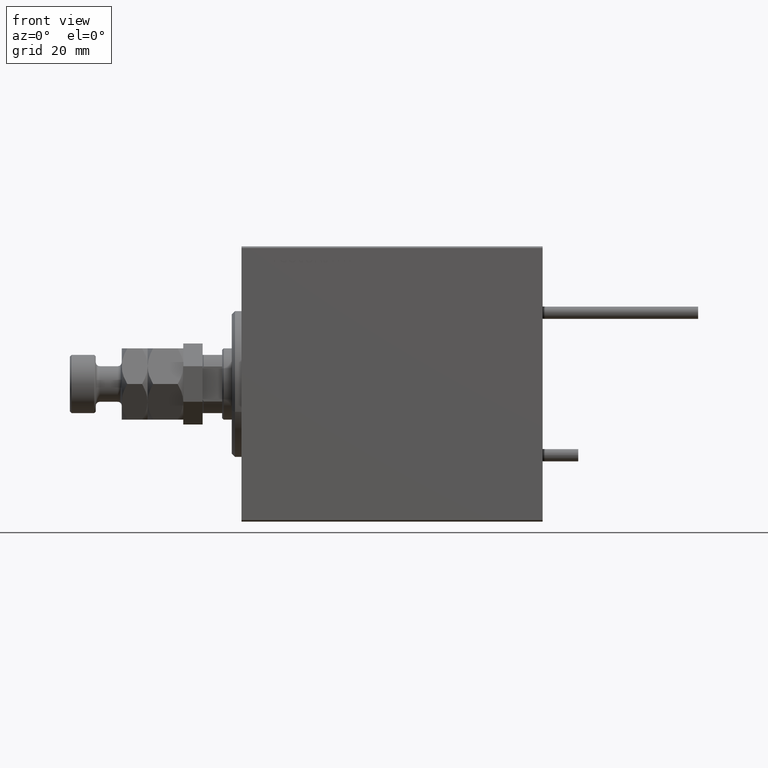
[diagram: clean part render]
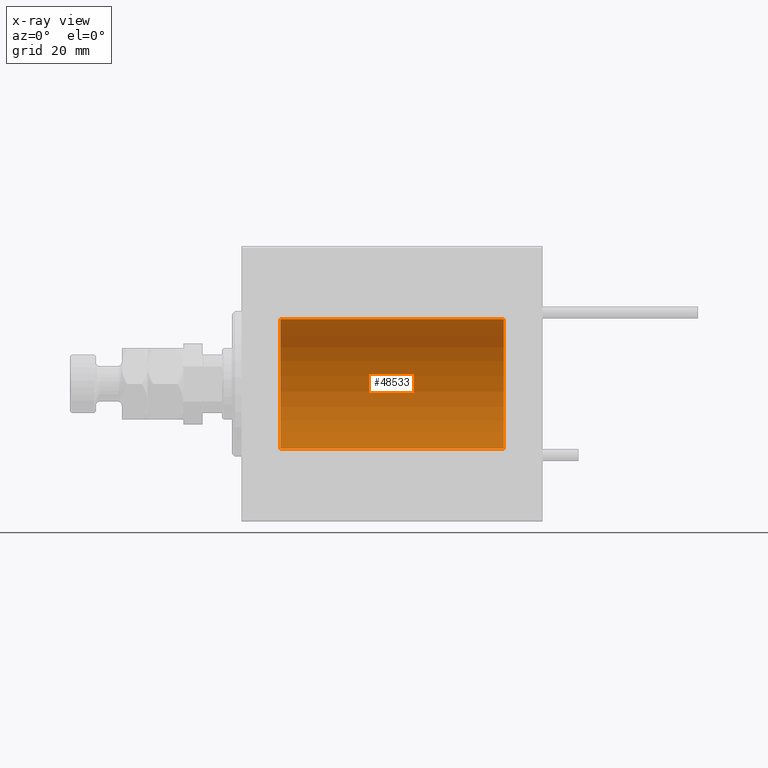
[diagram: x-ray — body ghosted, one internal face saturated and labeled with its STEP entity id]
A machine part, front view, then the same camera in x-ray: the body is ghosted and one INTERNAL B-rep face — a face not visible from any outside direction — is saturated and labeled: STEP entity #48533.
In plain terms, the highlighted cylindrical surface (partial cylindrical patch) has radius 20 mm, axis along (-1, -0, -0).
Its self-contained STEP definition (entity closure, byte-faithful):
#237 = ORIENTED_EDGE ( 'NONE', *, *, #27062, .F. ) ;
#2548 = CARTESIAN_POINT ( 'NONE',  ( 81.00000000000000000, 0.000000000000000000, 20.00000000000000000 ) ) ;
#4098 = CYLINDRICAL_SURFACE ( 'NONE', #14692, 20.00000000000000000 ) ;
#4639 = CARTESIAN_POINT ( 'NONE',  ( 81.00000000000000000, 0.000000000000000000, 20.00000000000000000 ) ) ;
#7573 = CARTESIAN_POINT ( 'NONE',  ( 11.99999999999999645, 0.000000000000000000, 20.00000000000000000 ) ) ;
#10331 = CIRCLE ( 'NONE', #47137, 20.00000000000000000 ) ;
#11092 = CARTESIAN_POINT ( 'NONE',  ( 81.00000000000000000, 0.000000000000000000, 0.000000000000000000 ) ) ;
#11710 = FACE_OUTER_BOUND ( 'NONE', #16971, .T. ) ;
#11732 = LINE ( 'NONE', #4639, #17516 ) ;
#13839 = DIRECTION ( 'NONE',  ( 0.000000000000000000, 0.000000000000000000, 1.000000000000000000 ) ) ;
#14692 = AXIS2_PLACEMENT_3D ( 'NONE', #43354, #43102, #15632 ) ;
#15243 = DIRECTION ( 'NONE',  ( -1.000000000000000000, -0.000000000000000000, -0.000000000000000000 ) ) ;
#15632 = DIRECTION ( 'NONE',  ( 0.000000000000000000, 0.000000000000000000, 1.000000000000000000 ) ) ;
#16971 = EDGE_LOOP ( 'NONE', ( #42592, #237, #42701, #22373 ) ) ;
#17241 = VERTEX_POINT ( 'NONE', #35540 ) ;
#17516 = VECTOR ( 'NONE', #32365, 1000.000000000000000 ) ;
#19988 = VERTEX_POINT ( 'NONE', #7573 ) ;
#22373 = ORIENTED_EDGE ( 'NONE', *, *, #40627, .T. ) ;
#26067 = EDGE_CURVE ( 'NONE', #39903, #19988, #11732, .T. ) ;
#26256 = CARTESIAN_POINT ( 'NONE',  ( 81.00000000000000000, 2.449293598294706513E-15, -20.00000000000000000 ) ) ;
#26518 = LINE ( 'NONE', #51071, #43017 ) ;
#27062 = EDGE_CURVE ( 'NONE', #39903, #51409, #47588, .T. ) ;
#32365 = DIRECTION ( 'NONE',  ( -1.000000000000000000, -0.000000000000000000, -0.000000000000000000 ) ) ;
#35540 = CARTESIAN_POINT ( 'NONE',  ( 11.99999999999999645, 2.449293598294706513E-15, -20.00000000000000000 ) ) ;
#35849 = DIRECTION ( 'NONE',  ( -1.000000000000000000, 0.000000000000000000, 0.000000000000000000 ) ) ;
#39903 = VERTEX_POINT ( 'NONE', #2548 ) ;
#40508 = CARTESIAN_POINT ( 'NONE',  ( 11.99999999999999645, 0.000000000000000000, 0.000000000000000000 ) ) ;
#40627 = EDGE_CURVE ( 'NONE', #19988, #17241, #10331, .T. ) ;
#42592 = ORIENTED_EDGE ( 'NONE', *, *, #46655, .F. ) ;
#42701 = ORIENTED_EDGE ( 'NONE', *, *, #26067, .T. ) ;
#43017 = VECTOR ( 'NONE', #15243, 1000.000000000000000 ) ;
#43102 = DIRECTION ( 'NONE',  ( -1.000000000000000000, -0.000000000000000000, -0.000000000000000000 ) ) ;
#43354 = CARTESIAN_POINT ( 'NONE',  ( 81.00000000000000000, 0.000000000000000000, 0.000000000000000000 ) ) ;
#45107 = AXIS2_PLACEMENT_3D ( 'NONE', #11092, #35849, #47367 ) ;
#46655 = EDGE_CURVE ( 'NONE', #51409, #17241, #26518, .T. ) ;
#47137 = AXIS2_PLACEMENT_3D ( 'NONE', #40508, #49669, #13839 ) ;
#47367 = DIRECTION ( 'NONE',  ( 0.000000000000000000, 0.000000000000000000, 1.000000000000000000 ) ) ;
#47588 = CIRCLE ( 'NONE', #45107, 20.00000000000000000 ) ;
#48533 = ADVANCED_FACE ( 'NONE', ( #11710 ), #4098, .F. ) ;
#49669 = DIRECTION ( 'NONE',  ( -1.000000000000000000, 0.000000000000000000, 0.000000000000000000 ) ) ;
#51071 = CARTESIAN_POINT ( 'NONE',  ( 81.00000000000000000, 2.449293598294706513E-15, -20.00000000000000000 ) ) ;
#51409 = VERTEX_POINT ( 'NONE', #26256 ) ;